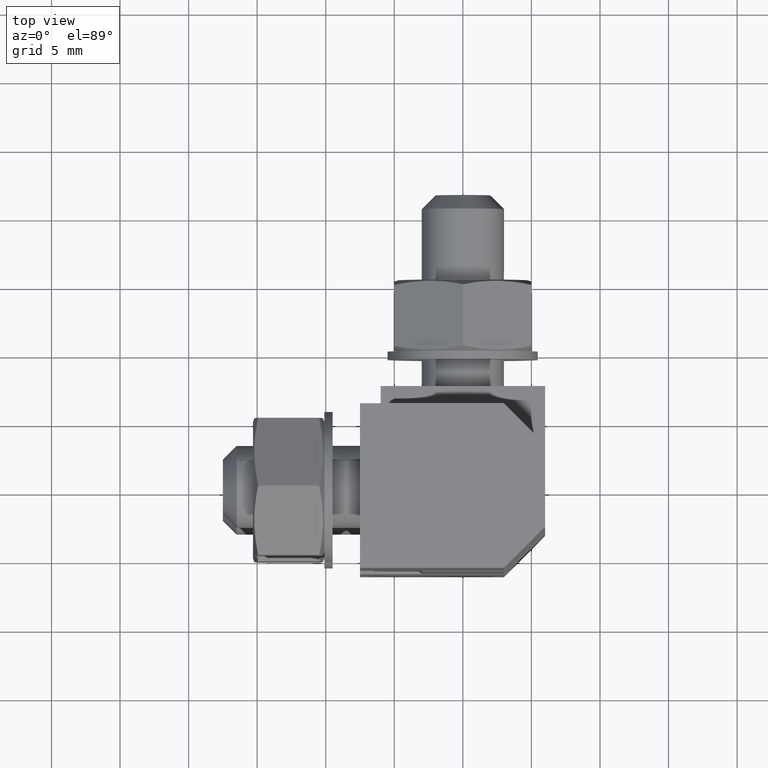
[diagram: clean part render]
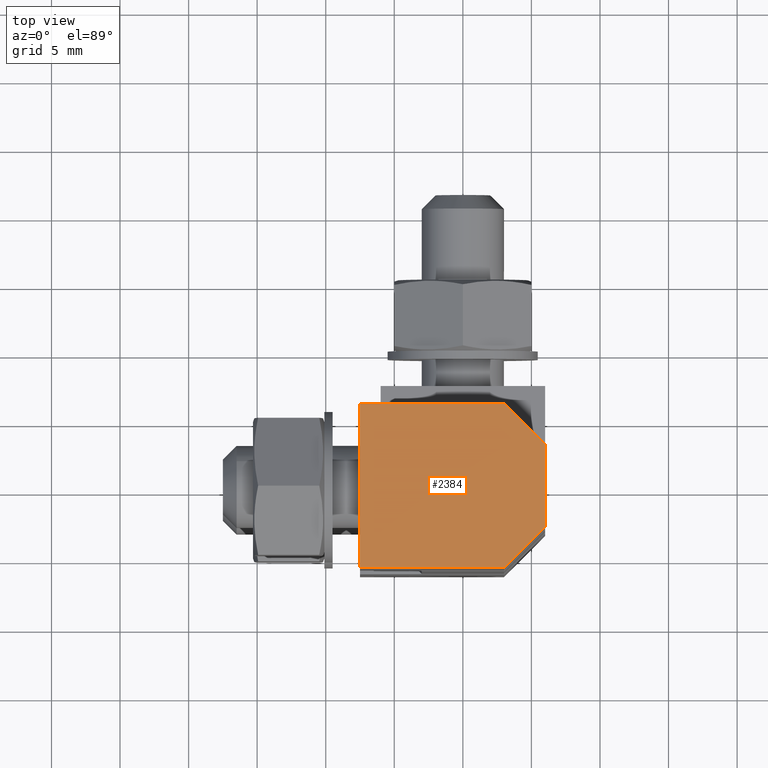
[diagram: same view with one face highlighted and labeled with its STEP entity id]
A machine part, top view. The second image highlights one B-rep face of the part: STEP entity #2384.
In plain terms, the highlighted face is a freeform B-spline surface patch.
Its self-contained STEP definition (entity closure, byte-faithful):
#2335=CARTESIAN_POINT('',(-8.174325488822342,-6.599400515491191,0.0));
#2336=CARTESIAN_POINT('',(6.674325658974874,-6.599400515491191,0.0));
#2337=CARTESIAN_POINT('',(-8.174325488822342,6.599400622779577,0.0));
#2338=CARTESIAN_POINT('',(6.674325658974874,6.599400622779577,0.0));
#2339=B_SPLINE_SURFACE_WITH_KNOTS('',1,1,((#2335,#2337),(#2336,#2338)),.UNSPECIFIED.,.F.,.F.,.U.,(2,2),(2,2),(0.0,14.848651147797220),(0.0,13.198801138270770),.UNSPECIFIED.);
#2340=CARTESIAN_POINT('',(3.000000142492310,6.000000284984729,0.0));
#2341=VERTEX_POINT('',#2340);
#2342=CARTESIAN_POINT('',(-7.500000356230840,6.000000284984700,0.0));
#2343=VERTEX_POINT('',#2342);
#2344=CARTESIAN_POINT('',(3.000000142492310,6.000000284984729,0.0));
#2345=CARTESIAN_POINT('',(-7.500000356230840,6.000000284984700,0.0));
#2346=QUASI_UNIFORM_CURVE('',1,(#2344,#2345),.UNSPECIFIED.,.F.,.U.);
#2347=EDGE_CURVE('',#2341,#2343,#2346,.T.);
#2348=ORIENTED_EDGE('',*,*,#2347,.F.);
#2349=CARTESIAN_POINT('',(6.000000284984610,3.000000142492345,0.0));
#2350=VERTEX_POINT('',#2349);
#2351=CARTESIAN_POINT('',(6.000000284984610,3.000000142492345,0.0));
#2352=CARTESIAN_POINT('',(3.000000142492310,6.000000284984729,0.0));
#2353=QUASI_UNIFORM_CURVE('',1,(#2351,#2352),.UNSPECIFIED.,.F.,.U.);
#2354=EDGE_CURVE('',#2350,#2341,#2353,.T.);
#2355=ORIENTED_EDGE('',*,*,#2354,.F.);
#2356=CARTESIAN_POINT('',(6.000000284984610,-3.000000142492360,0.0));
#2357=VERTEX_POINT('',#2356);
#2358=CARTESIAN_POINT('',(6.000000284984610,-3.000000142492360,0.0));
#2359=CARTESIAN_POINT('',(6.000000284984610,3.000000142492345,0.0));
#2360=QUASI_UNIFORM_CURVE('',1,(#2358,#2359),.UNSPECIFIED.,.F.,.U.);
#2361=EDGE_CURVE('',#2357,#2350,#2360,.T.);
#2362=ORIENTED_EDGE('',*,*,#2361,.F.);
#2363=CARTESIAN_POINT('',(3.000000142492210,-6.000000284984710,0.0));
#2364=VERTEX_POINT('',#2363);
#2365=CARTESIAN_POINT('',(3.000000142492210,-6.000000284984710,0.0));
#2366=CARTESIAN_POINT('',(6.000000284984610,-3.000000142492360,0.0));
#2367=QUASI_UNIFORM_CURVE('',1,(#2365,#2366),.UNSPECIFIED.,.F.,.U.);
#2368=EDGE_CURVE('',#2364,#2357,#2367,.T.);
#2369=ORIENTED_EDGE('',*,*,#2368,.F.);
#2370=CARTESIAN_POINT('',(-7.500000356230901,-6.000000284984710,0.0));
#2371=VERTEX_POINT('',#2370);
#2372=CARTESIAN_POINT('',(-7.500000356230901,-6.000000284984710,0.0));
#2373=CARTESIAN_POINT('',(3.000000142492210,-6.000000284984710,0.0));
#2374=QUASI_UNIFORM_CURVE('',1,(#2372,#2373),.UNSPECIFIED.,.F.,.U.);
#2375=EDGE_CURVE('',#2371,#2364,#2374,.T.);
#2376=ORIENTED_EDGE('',*,*,#2375,.F.);
#2377=CARTESIAN_POINT('',(-7.500000356230840,6.000000284984700,0.0));
#2378=CARTESIAN_POINT('',(-7.500000356230901,-6.000000284984710,0.0));
#2379=QUASI_UNIFORM_CURVE('',1,(#2377,#2378),.UNSPECIFIED.,.F.,.U.);
#2380=EDGE_CURVE('',#2343,#2371,#2379,.T.);
#2381=ORIENTED_EDGE('',*,*,#2380,.F.);
#2382=EDGE_LOOP('',(#2348,#2355,#2362,#2369,#2376,#2381));
#2383=FACE_OUTER_BOUND('',#2382,.T.);
#2384=ADVANCED_FACE('',(#2383),#2339,.F.);